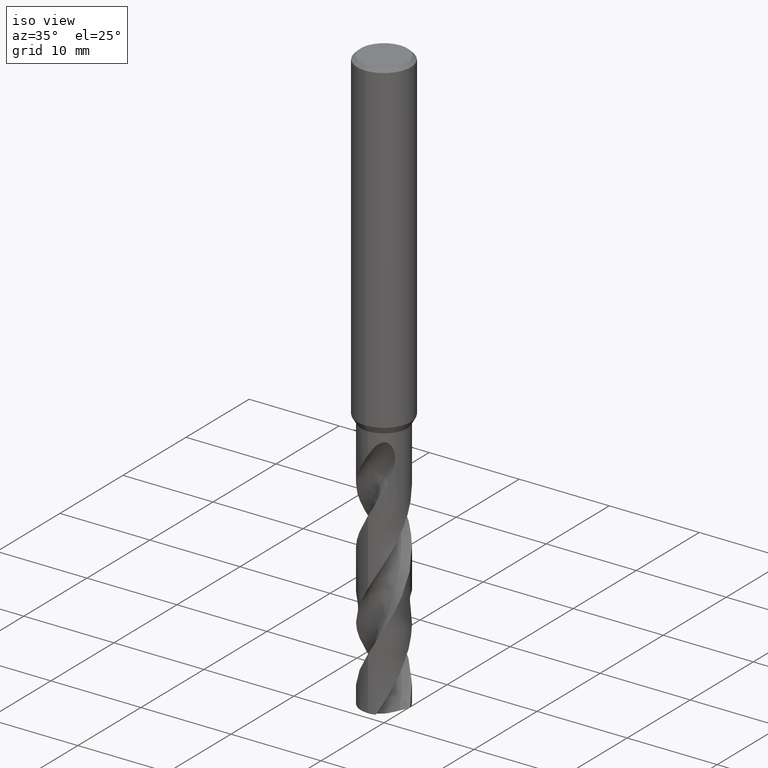
[diagram: clean part render]
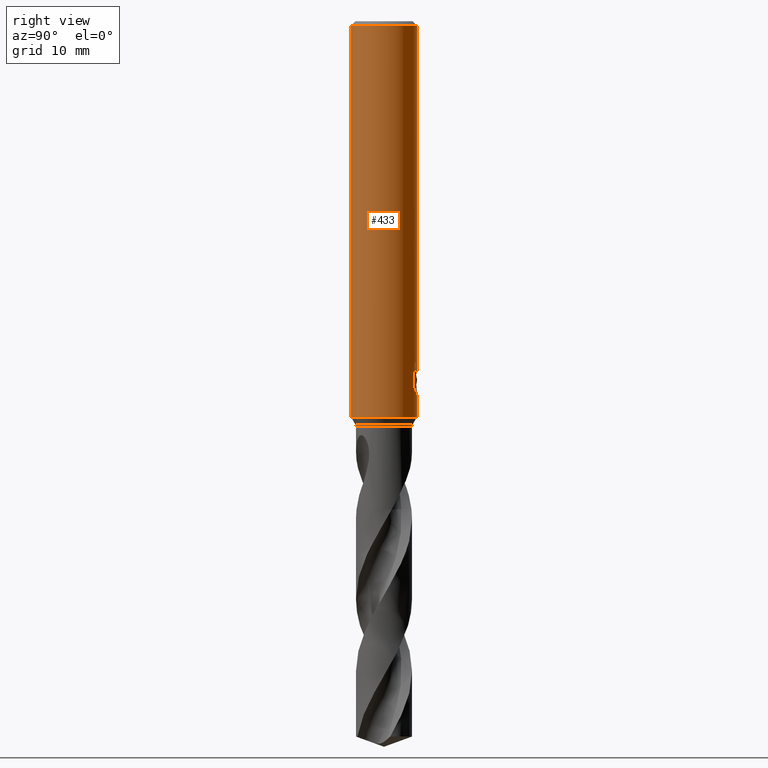
[diagram: tour spotlight — one face highlighted and labeled with its STEP entity id]
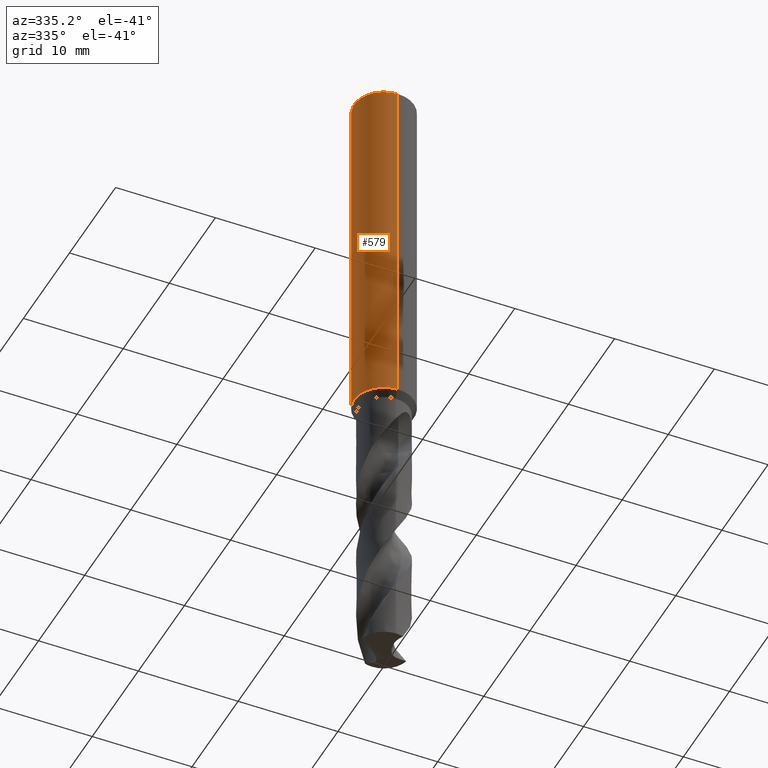
[diagram: tour spotlight — one face highlighted and labeled with its STEP entity id]
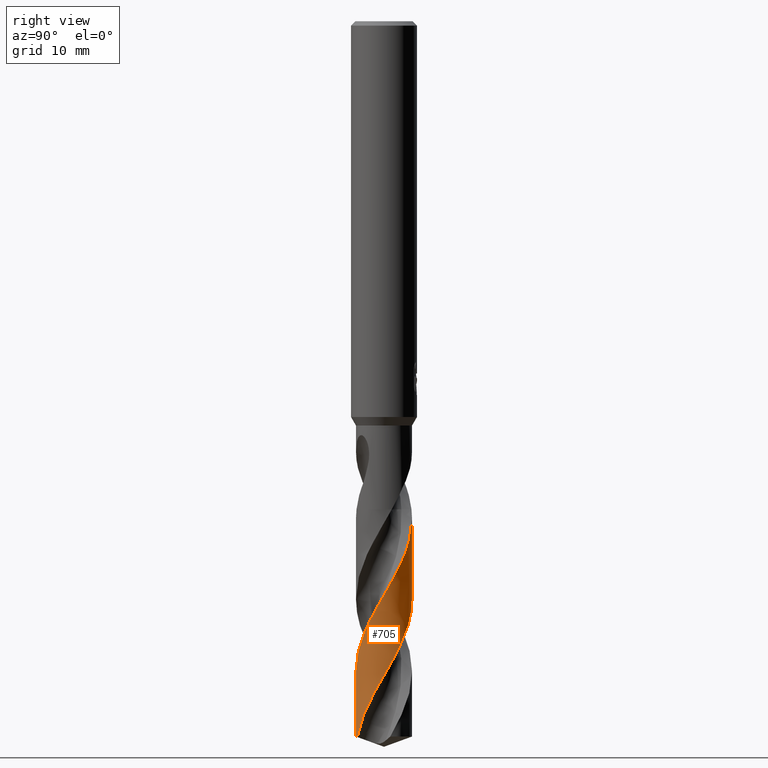
[diagram: tour spotlight — one face highlighted and labeled with its STEP entity id]
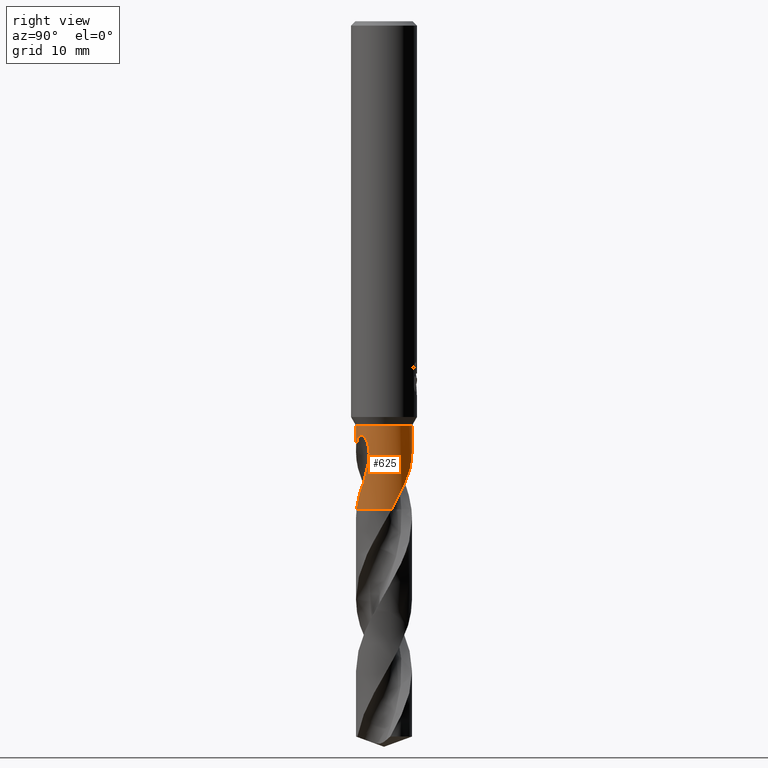
[diagram: tour spotlight — one face highlighted and labeled with its STEP entity id]
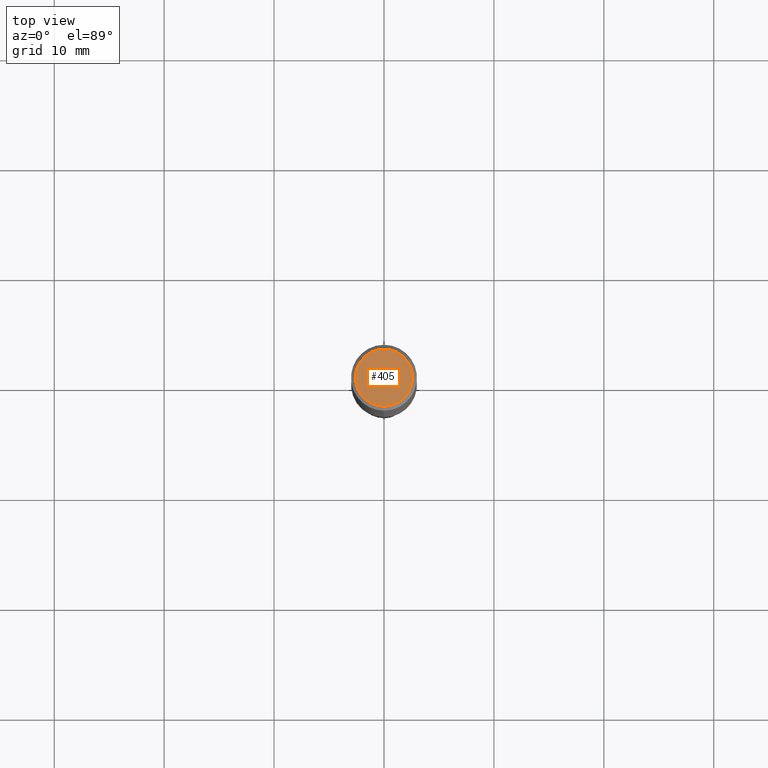
[diagram: tour spotlight — one face highlighted and labeled with its STEP entity id]
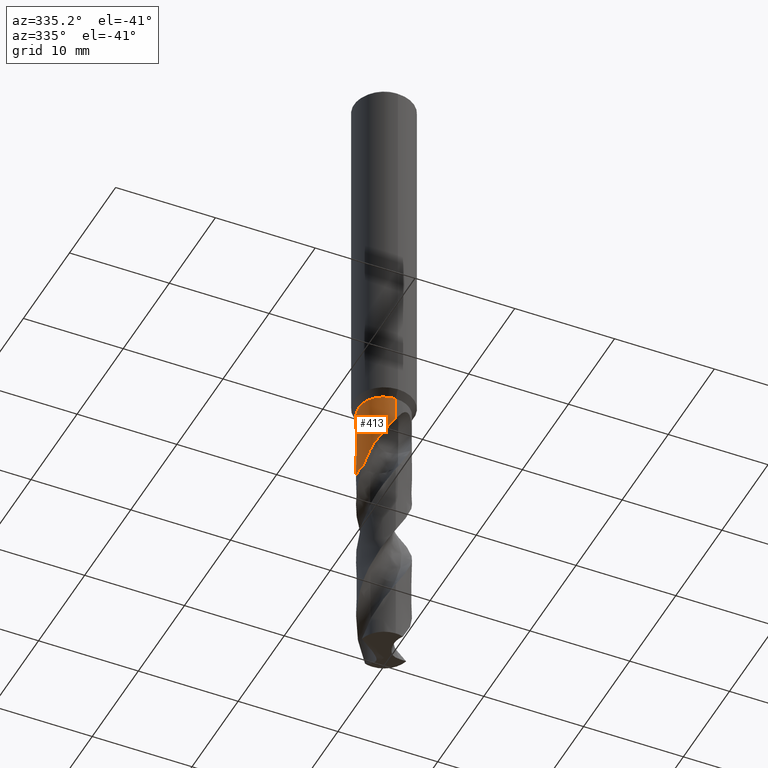
[diagram: tour spotlight — one face highlighted and labeled with its STEP entity id]
A machine part: a face-by-face anatomy tour. The part has 48 B-rep faces; the first image is the clean iso view, then the 6 largest visible faces are spotlighted one at a time (largest first), each with its STEP entity span.

Face 1 — right view, entity #433. In plain terms, the highlighted cylindrical surface (edge-blend (fillet) strip) has radius 3 mm, axis along (-0, -0, 1).
Definition (entity closure, byte-faithful):
#305=EDGE_CURVE('',#415,#685,#829,.T.);
#311=VERTEX_POINT('',#836);
#321=EDGE_CURVE('',#449,#701,#847,.T.);
#329=EDGE_CURVE('',#453,#685,#855,.T.);
#335=EDGE_CURVE('',#383,#369,#861,.T.);
#369=VERTEX_POINT('',#897);
#371=EDGE_CURVE('',#453,#369,#899,.T.);
#383=VERTEX_POINT('',#911);
#415=VERTEX_POINT('',#950);
#433=ADVANCED_FACE('',(#968),#969,.T.);
#449=VERTEX_POINT('',#986);
#453=VERTEX_POINT('',#990);
#461=VERTEX_POINT('',#999);
#477=VERTEX_POINT('',#1016);
#533=VERTEX_POINT('',#1078);
#613=EDGE_CURVE('',#449,#533,#1168,.T.);
#645=EDGE_CURVE('',#477,#461,#1204,.T.);
#677=EDGE_CURVE('',#533,#415,#1240,.T.);
#685=VERTEX_POINT('',#1249);
#687=EDGE_CURVE('',#311,#477,#1251,.T.);
#701=VERTEX_POINT('',#1267);
#709=EDGE_CURVE('',#701,#769,#1276,.T.);
#769=VERTEX_POINT('',#1338);
#773=EDGE_CURVE('',#769,#311,#1342,.T.);
#785=EDGE_CURVE('',#461,#383,#1355,.T.);
#829=LINE('',#1913,#1914);
#836=CARTESIAN_POINT('',(0.873560781758956,2.86999852971612,-33.7587351791531));
#847=B_SPLINE_CURVE_WITH_KNOTS('',3,(#1937,#1938,#1939,#1940,#1941,#1942,#1943,#1944,#1945,#1946,#1947,#1948,#1949,#1950,#1951,#1952),.UNSPECIFIED.,.F.,.F.,(4,2,2,2,2,2,2,4),(5.66023402257373,6.29060333517104,6.60504483258975,6.91948633000846,7.23392782742717,7.54836932484587,7.86141901111221,8.17446869737855),.UNSPECIFIED.);
#855=CIRCLE('',#1981,3.0);
#861=B_SPLINE_CURVE_WITH_KNOTS('',3,(#1988,#1989,#1990,#1991,#1992,#1993,#1994,#1995,#1996,#1997,#1998,#1999,#2000,#2001,#2002,#2003,#2004,#2005,#2006,#2007,#2008,#2009,#2010,#2011,#2012,#2013,#2014),.UNSPECIFIED.,.F.,.F.,(4,2,3,2,2,2,2,2,2,2,2,2,4),(-0.54422824842136,-0.27211412421068,0.0,0.272114124210678,0.544228248421357,0.817906359646673,1.09158447087199,1.36255924571499,1.63353402055798,1.90530456554772,2.17707511053746,2.4488456555272,2.72061620051693),.UNSPECIFIED.);
#897=CARTESIAN_POINT('',(-1.20768269592175E-015,3.0,-32.0232688117743));
#899=LINE('',#2567,#2568);
#911=CARTESIAN_POINT('',(0.799431726384364,2.89152363207533,-31.000000276873));
#950=CARTESIAN_POINT('',(3.67381906146713E-016,-3.0,-36.0));
#968=FACE_OUTER_BOUND('',#3528,.T.);
#969=CYLINDRICAL_SURFACE('',#3529,3.0);
#986=CARTESIAN_POINT('',(-2.46407913303377E-016,3.0,-34.0310253601033));
#990=CARTESIAN_POINT('',(0.0,3.0,-0.399999999999999));
#999=CARTESIAN_POINT('',(1.33721006514658,2.68549236485057,-31.5150484364821));
#1016=CARTESIAN_POINT('',(1.33721006514658,2.68549236485056,-33.2901657003257));
#1078=CARTESIAN_POINT('',(0.0,3.0,-36.0));
#1168=LINE('',#5388,#5389);
#1204=LINE('',#5662,#5663);
#1240=CIRCLE('',#5775,3.0);
#1249=CARTESIAN_POINT('',(3.67381906146713E-016,-3.0,-0.399999999999999));
#1251=B_SPLINE_CURVE_WITH_KNOTS('',3,(#5998,#5999,#6000,#6001,#6002,#6003,#6004,#6005),.UNSPECIFIED.,.F.,.F.,(4,2,2,4),(8.17446522132897,8.48751487521068,8.80056452909238,9.43014514523744),.UNSPECIFIED.);
#1267=CARTESIAN_POINT('',(0.29010312703583,2.98594041730307,-33.9998328990228));
#1276=ELLIPSE('',#6334,9.14398372010932,3.0);
#1338=CARTESIAN_POINT('',(0.873560781758957,2.86999852971612,-32.3198931596091));
#1342=LINE('',#6835,#6836);
#1355=B_SPLINE_CURVE_WITH_KNOTS('',3,(#6857,#6858,#6859,#6860,#6861,#6862,#6863,#6864),.UNSPECIFIED.,.F.,.F.,(4,2,2,4),(0.629580638580865,1.25916127716173,1.57221094126725,1.88526060537277),.UNSPECIFIED.);
#1913=CARTESIAN_POINT('',(3.67381906146713E-016,-3.0,-18.2));
#1914=VECTOR('',#7303,1.0);
#1937=CARTESIAN_POINT('',(-1.53050642192579,2.58022287650581,-33.0319811255889));
#1938=CARTESIAN_POINT('',(-1.44691631248335,2.62980577312329,-33.2314887010961));
#1939=CARTESIAN_POINT('',(-1.32276760444366,2.69707077181617,-33.4113258593841));
#1940=CARTESIAN_POINT('',(-1.10973155101076,2.78826898930335,-33.6245951706909));
#1941=CARTESIAN_POINT('',(-1.02948996220254,2.81934349084513,-33.6916117853674));
#1942=CARTESIAN_POINT('',(-0.853932698223484,2.87738531454781,-33.8105216600777));
#1943=CARTESIAN_POINT('',(-0.758609991487907,2.90431263574779,-33.8624240602539));
#1944=CARTESIAN_POINT('',(-0.558469552260235,2.94934446690523,-33.9464055954533));
#1945=CARTESIAN_POINT('',(-0.453457041446381,2.96746268462387,-33.9785511641911));
#1946=CARTESIAN_POINT('',(-0.240810292537893,2.99223469602914,-34.0209924679526));
#1947=CARTESIAN_POINT('',(-0.133171317626829,2.99887501234033,-34.0312723335086));
#1948=CARTESIAN_POINT('',(0.0759830626177195,3.00085245803086,-34.0312723335086));
#1949=CARTESIAN_POINT('',(0.183273473896684,2.99629272230549,-34.0210815541729));
#1950=CARTESIAN_POINT('',(0.39543915272815,2.97573303917486,-33.9788816901513));
#1951=CARTESIAN_POINT('',(0.500318639064909,2.95974677710468,-33.9468871509919));
#1952=CARTESIAN_POINT('',(0.600330982089903,2.93932011049205,-33.9050368602192));
#1981=AXIS2_PLACEMENT_3D('',#7325,#7326,#7327);
#1988=CARTESIAN_POINT('',(0.665621182276714,2.92522622060321,-30.8140957881762));
#1989=CARTESIAN_POINT('',(0.728850563417096,2.91083867849353,-30.877518087557));
#1990=CARTESIAN_POINT('',(0.783900459387161,2.89602337967411,-30.9578702196133));
#1991=CARTESIAN_POINT('',(0.857188692916628,2.87518328740958,-31.1345580124299));
#1992=CARTESIAN_POINT('',(0.875400981188567,2.86943777108584,-31.2309373045166));
#1993=CARTESIAN_POINT('',(0.875400981188567,2.86943777108584,-31.3216420125868));
#1994=CARTESIAN_POINT('',(0.875400981188567,2.86943777108584,-31.412346720657));
#1995=CARTESIAN_POINT('',(0.857188692916629,2.87518328740958,-31.5087260127437));
#1996=CARTESIAN_POINT('',(0.783900459387161,2.89602337967411,-31.6854138055602));
#1997=CARTESIAN_POINT('',(0.728850563417096,2.91083867849353,-31.7657659376165));
#1998=CARTESIAN_POINT('',(0.60202838769231,2.93969645569731,-31.8929750586276));
#1999=CARTESIAN_POINT('',(0.5214778595293,2.95568533572518,-31.9483797636259));
#2000=CARTESIAN_POINT('',(0.34429909105015,2.98152194310932,-32.0221641076746));
#2001=CARTESIAN_POINT('',(0.247628172090375,2.99115403786358,-32.0405166027747));
#2002=CARTESIAN_POINT('',(0.0663244946631877,3.00062654348629,-32.0405166027747));
#2003=CARTESIAN_POINT('',(-0.0299285908853379,3.00115720326599,-32.0224875186921));
#2004=CARTESIAN_POINT('',(-0.206881310600538,2.99416773126077,-31.949244373347));
#2005=CARTESIAN_POINT('',(-0.287593937381961,2.98687212067831,-31.8940404490632));
#2006=CARTESIAN_POINT('',(-0.415200117492864,2.97182576996222,-31.7666805419979));
#2007=CARTESIAN_POINT('',(-0.470604049431396,2.96309385107775,-31.6859121102136));
#2008=CARTESIAN_POINT('',(-0.544183869965539,2.95046729924835,-31.5086992019516));
#2009=CARTESIAN_POINT('',(-0.562348199187247,2.94682278104247,-31.41223219425));
#2010=CARTESIAN_POINT('',(-0.562348199187247,2.94682278104247,-31.2310518309235));
#2011=CARTESIAN_POINT('',(-0.54418386996554,2.95046729924835,-31.134584823222));
#2012=CARTESIAN_POINT('',(-0.4706040494314,2.96309385107775,-30.95737191496));
#2013=CARTESIAN_POINT('',(-0.415200117492863,2.97182576996222,-30.8766034831756));
#2014=CARTESIAN_POINT('',(-0.351303479704285,2.97935997575782,-30.812830162452));
#2567=CARTESIAN_POINT('',(-3.67381906146713E-016,3.0,-18.2));
#2568=VECTOR('',#7352,1.0);
#3528=EDGE_LOOP('',(#7429,#7430,#7431,#7432,#7433,#7434,#7435,#7436,#7437,#7438,#7439,#7440));
#3529=AXIS2_PLACEMENT_3D('',#7441,#7442,#7443);
#5388=CARTESIAN_POINT('',(-3.67381906146713E-016,3.0,-18.2));
#5389=VECTOR('',#7682,1.0);
#5662=CARTESIAN_POINT('',(1.33721006514658,2.68549236485056,-32.4026070684039));
#5663=VECTOR('',#7727,1.0);
#5775=AXIS2_PLACEMENT_3D('',#7768,#7769,#7770);
#5998=CARTESIAN_POINT('',(0.600330703923335,2.93932016730517,-33.9050364278969));
#5999=CARTESIAN_POINT('',(0.700343038443484,2.91889351228921,-33.8631861412044));
#6000=CARTESIAN_POINT('',(0.795685584213131,2.8940165604303,-33.8114119954011));
#6001=CARTESIAN_POINT('',(0.971352589628262,2.83988055167306,-33.692706383359));
#6002=CARTESIAN_POINT('',(1.0516835476539,2.81066216129401,-33.6257659914415));
#6003=CARTESIAN_POINT('',(1.26543925920527,2.72440179743877,-33.4122346680481));
#6004=CARTESIAN_POINT('',(1.3899740959159,2.66030349847411,-33.2319488826214));
#6005=CARTESIAN_POINT('',(1.47371594109741,2.61307507066968,-33.0321377817991));
#6334=AXIS2_PLACEMENT_3D('',#7801,#7802,#7803);
#6835=CARTESIAN_POINT('',(0.873560781758957,2.86999852971612,-33.0393141693811));
#6836=VECTOR('',#7835,1.0);
#6857=CARTESIAN_POINT('',(1.47371594887933,2.61307506628086,-31.7730763684241));
#6858=CARTESIAN_POINT('',(1.38997410067862,2.66030349611674,-31.5732652606136));
#6859=CARTESIAN_POINT('',(1.2654392594963,2.72440179761724,-31.3929794688919));
#6860=CARTESIAN_POINT('',(1.05168354029617,2.81066216411606,-31.1794481382038));
#6861=CARTESIAN_POINT('',(0.971352579549231,2.83988055521709,-31.1125077441098));
#6862=CARTESIAN_POINT('',(0.795685568183073,2.89401656493242,-30.9938021282019));
#6863=CARTESIAN_POINT('',(0.700343019183212,2.91889351702519,-30.9420279807093));
#6864=CARTESIAN_POINT('',(0.600330681290245,2.93932017192779,-30.9001776926585));
#7303=DIRECTION('',(-0.0,-0.0,1.0));
#7325=CARTESIAN_POINT('',(0.0,0.0,-0.399999999999999));
#7326=DIRECTION('',(0.0,0.0,-1.0));
#7327=DIRECTION('',(0.0,1.0,0.0));
#7352=DIRECTION('',(0.0,0.0,-1.0));
#7429=ORIENTED_EDGE('',*,*,#371,.F.);
#7430=ORIENTED_EDGE('',*,*,#329,.T.);
#7431=ORIENTED_EDGE('',*,*,#305,.F.);
#7432=ORIENTED_EDGE('',*,*,#677,.F.);
#7433=ORIENTED_EDGE('',*,*,#613,.F.);
#7434=ORIENTED_EDGE('',*,*,#321,.T.);
#7435=ORIENTED_EDGE('',*,*,#709,.T.);
#7436=ORIENTED_EDGE('',*,*,#773,.T.);
#7437=ORIENTED_EDGE('',*,*,#687,.T.);
#7438=ORIENTED_EDGE('',*,*,#645,.T.);
#7439=ORIENTED_EDGE('',*,*,#785,.T.);
#7440=ORIENTED_EDGE('',*,*,#335,.T.);
#7441=CARTESIAN_POINT('',(0.0,0.0,-18.2));
#7442=DIRECTION('',(-0.0,-0.0,1.0));
#7443=DIRECTION('',(0.0,1.0,0.0));
#7682=DIRECTION('',(0.0,0.0,-1.0));
#7727=DIRECTION('',(-0.0,-0.0,1.0));
#7768=CARTESIAN_POINT('',(0.0,0.0,-36.0));
#7769=DIRECTION('',(0.0,0.0,-1.0));
#7770=DIRECTION('',(0.0,1.0,0.0));
#7801=CARTESIAN_POINT('',(0.0,0.0,-34.8351219173269));
#7802=DIRECTION('',(0.944648353914092,0.0,-0.328084573619969));
#7803=DIRECTION('',(0.328084573619969,-0.0,0.944648353914092));
#7835=DIRECTION('',(0.0,0.0,-1.0));

Face 2 — auxiliary view, entity #579. In plain terms, the highlighted cylindrical surface (edge-blend (fillet) strip) has radius 3 mm, axis along (-0, -0, 1).
Definition (entity closure, byte-faithful):
#301=VERTEX_POINT('',#825);
#305=EDGE_CURVE('',#415,#685,#829,.T.);
#369=VERTEX_POINT('',#897);
#371=EDGE_CURVE('',#453,#369,#899,.T.);
#377=EDGE_CURVE('',#747,#507,#905,.T.);
#407=EDGE_CURVE('',#421,#695,#941,.T.);
#411=EDGE_CURVE('',#507,#449,#945,.T.);
#415=VERTEX_POINT('',#950);
#421=VERTEX_POINT('',#956);
#449=VERTEX_POINT('',#986);
#453=VERTEX_POINT('',#990);
#499=EDGE_CURVE('',#603,#301,#1040,.T.);
#507=VERTEX_POINT('',#1049);
#517=EDGE_CURVE('',#685,#453,#1060,.T.);
#529=EDGE_CURVE('',#301,#747,#1073,.T.);
#533=VERTEX_POINT('',#1078);
#557=EDGE_CURVE('',#695,#603,#1104,.T.);
#579=ADVANCED_FACE('',(#1130),#1131,.T.);
#603=VERTEX_POINT('',#1157);
#613=EDGE_CURVE('',#449,#533,#1168,.T.);
#653=EDGE_CURVE('',#369,#421,#1214,.T.);
#685=VERTEX_POINT('',#1249);
#695=VERTEX_POINT('',#1260);
#747=VERTEX_POINT('',#1315);
#765=EDGE_CURVE('',#415,#533,#1333,.T.);
#825=CARTESIAN_POINT('',(-2.06254272401587E-016,3.0,-32.5000801551881));
#829=LINE('',#1913,#1914);
#897=CARTESIAN_POINT('',(-1.20768269592175E-015,3.0,-32.0232688117743));
#899=LINE('',#2567,#2568);
#905=ELLIPSE('',#2576,3.34478529612858,3.0);
#941=B_SPLINE_CURVE_WITH_KNOTS('',3,(#3355,#3356,#3357,#3358,#3359,#3360,#3361,#3362,#3363,#3364,#3365,#3366,#3367,#3368,#3369,#3370,#3371,#3372,#3373,#3374,#3375,#3376,#3377,#3378,#3379,#3380,#3381),.UNSPECIFIED.,.F.,.F.,(4,2,3,2,2,2,2,2,2,2,2,2,4),(-0.54422824842136,-0.27211412421068,0.0,0.272114124210678,0.544228248421357,0.817906359646673,1.09158447087199,1.36255924571499,1.63353402055798,1.90530456554772,2.17707511053746,2.4488456555272,2.72061620051693),.UNSPECIFIED.);
#945=B_SPLINE_CURVE_WITH_KNOTS('',3,(#3425,#3426,#3427,#3428,#3429,#3430,#3431,#3432,#3433,#3434,#3435,#3436,#3437,#3438,#3439,#3440),.UNSPECIFIED.,.F.,.F.,(4,2,2,2,2,2,2,4),(5.66023402257373,6.29060333517104,6.60504483258975,6.91948633000846,7.23392782742717,7.54836932484587,7.86141901111221,8.17446869737855),.UNSPECIFIED.);
#950=CARTESIAN_POINT('',(3.67381906146713E-016,-3.0,-36.0));
#956=CARTESIAN_POINT('',(-0.486378944383045,2.96031003823262,-31.6432837483006));
#986=CARTESIAN_POINT('',(-2.46407913303377E-016,3.0,-34.0310253601033));
#990=CARTESIAN_POINT('',(0.0,3.0,-0.399999999999999));
#1040=B_SPLINE_CURVE_WITH_KNOTS('',3,(#4132,#4133,#4134,#4135,#4136,#4137,#4138,#4139,#4140,#4141,#4142,#4143,#4144,#4145),.UNSPECIFIED.,.F.,.F.,(4,2,2,2,2,2,4),(3.16026050654945,3.61086409539206,4.06146768423468,4.51207127307729,4.95991823802074,5.40776520296419,5.86282890530594),.UNSPECIFIED.);
#1049=CARTESIAN_POINT('',(-1.337052752443,2.68557069115386,-33.3720803908795));
#1060=CIRCLE('',#4168,3.0);
#1073=LINE('',#4207,#4208);
#1078=CARTESIAN_POINT('',(0.0,3.0,-36.0));
#1104=CIRCLE('',#4272,3.0);
#1130=FACE_OUTER_BOUND('',#4330,.T.);
#1131=CYLINDRICAL_SURFACE('',#4331,3.0);
#1157=CARTESIAN_POINT('',(-1.0350734039088,2.81578107254819,-31.3171221986971));
#1168=LINE('',#5388,#5389);
#1214=B_SPLINE_CURVE_WITH_KNOTS('',3,(#5675,#5676,#5677,#5678,#5679,#5680,#5681,#5682,#5683,#5684,#5685,#5686,#5687,#5688,#5689,#5690,#5691,#5692,#5693,#5694,#5695,#5696,#5697,#5698,#5699,#5700,#5701),.UNSPECIFIED.,.F.,.F.,(4,2,3,2,2,2,2,2,2,2,2,2,4),(-0.54422824842136,-0.27211412421068,0.0,0.272114124210678,0.544228248421357,0.817906359646673,1.09158447087199,1.36255924571499,1.63353402055798,1.90530456554772,2.17707511053746,2.4488456555272,2.72061620051693),.UNSPECIFIED.);
#1249=CARTESIAN_POINT('',(3.67381906146713E-016,-3.0,-0.399999999999999));
#1260=CARTESIAN_POINT('',(-0.562333990228013,2.94682549253162,-31.3171221986971));
#1315=CARTESIAN_POINT('',(-3.67366600472444E-016,3.0,-32.7128911336578));
#1333=CIRCLE('',#6821,3.0);
#1913=CARTESIAN_POINT('',(3.67381906146713E-016,-3.0,-18.2));
#1914=VECTOR('',#7303,1.0);
#2567=CARTESIAN_POINT('',(-3.67381906146713E-016,3.0,-18.2));
#2568=VECTOR('',#7352,1.0);
#2576=AXIS2_PLACEMENT_3D('',#7356,#7357,#7358);
#3355=CARTESIAN_POINT('',(0.665621182276714,2.92522622060321,-30.8140957881762));
#3356=CARTESIAN_POINT('',(0.728850563417096,2.91083867849353,-30.877518087557));
#3357=CARTESIAN_POINT('',(0.783900459387161,2.89602337967411,-30.9578702196133));
#3358=CARTESIAN_POINT('',(0.857188692916628,2.87518328740958,-31.1345580124299));
#3359=CARTESIAN_POINT('',(0.875400981188567,2.86943777108584,-31.2309373045166));
#3360=CARTESIAN_POINT('',(0.875400981188567,2.86943777108584,-31.3216420125868));
#3361=CARTESIAN_POINT('',(0.875400981188567,2.86943777108584,-31.412346720657));
#3362=CARTESIAN_POINT('',(0.857188692916629,2.87518328740958,-31.5087260127437));
#3363=CARTESIAN_POINT('',(0.783900459387161,2.89602337967411,-31.6854138055602));
#3364=CARTESIAN_POINT('',(0.728850563417096,2.91083867849353,-31.7657659376165));
#3365=CARTESIAN_POINT('',(0.60202838769231,2.93969645569731,-31.8929750586276));
#3366=CARTESIAN_POINT('',(0.5214778595293,2.95568533572518,-31.9483797636259));
#3367=CARTESIAN_POINT('',(0.34429909105015,2.98152194310932,-32.0221641076746));
#3368=CARTESIAN_POINT('',(0.247628172090375,2.99115403786358,-32.0405166027747));
#3369=CARTESIAN_POINT('',(0.0663244946631877,3.00062654348629,-32.0405166027747));
#3370=CARTESIAN_POINT('',(-0.0299285908853379,3.00115720326599,-32.0224875186921));
#3371=CARTESIAN_POINT('',(-0.206881310600538,2.99416773126077,-31.949244373347));
#3372=CARTESIAN_POINT('',(-0.287593937381961,2.98687212067831,-31.8940404490632));
#3373=CARTESIAN_POINT('',(-0.415200117492864,2.97182576996222,-31.7666805419979));
#3374=CARTESIAN_POINT('',(-0.470604049431396,2.96309385107775,-31.6859121102136));
#3375=CARTESIAN_POINT('',(-0.544183869965539,2.95046729924835,-31.5086992019516));
#3376=CARTESIAN_POINT('',(-0.562348199187247,2.94682278104247,-31.41223219425));
#3377=CARTESIAN_POINT('',(-0.562348199187247,2.94682278104247,-31.2310518309235));
#3378=CARTESIAN_POINT('',(-0.54418386996554,2.95046729924835,-31.134584823222));
#3379=CARTESIAN_POINT('',(-0.4706040494314,2.96309385107775,-30.95737191496));
#3380=CARTESIAN_POINT('',(-0.415200117492863,2.97182576996222,-30.8766034831756));
#3381=CARTESIAN_POINT('',(-0.351303479704285,2.97935997575782,-30.812830162452));
#3425=CARTESIAN_POINT('',(-1.53050642192579,2.58022287650581,-33.0319811255889));
#3426=CARTESIAN_POINT('',(-1.44691631248335,2.62980577312329,-33.2314887010961));
#3427=CARTESIAN_POINT('',(-1.32276760444366,2.69707077181617,-33.4113258593841));
#3428=CARTESIAN_POINT('',(-1.10973155101076,2.78826898930335,-33.6245951706909));
#3429=CARTESIAN_POINT('',(-1.02948996220254,2.81934349084513,-33.6916117853674));
#3430=CARTESIAN_POINT('',(-0.853932698223484,2.87738531454781,-33.8105216600777));
#3431=CARTESIAN_POINT('',(-0.758609991487907,2.90431263574779,-33.8624240602539));
#3432=CARTESIAN_POINT('',(-0.558469552260235,2.94934446690523,-33.9464055954533));
#3433=CARTESIAN_POINT('',(-0.453457041446381,2.96746268462387,-33.9785511641911));
#3434=CARTESIAN_POINT('',(-0.240810292537893,2.99223469602914,-34.0209924679526));
#3435=CARTESIAN_POINT('',(-0.133171317626829,2.99887501234033,-34.0312723335086));
#3436=CARTESIAN_POINT('',(0.0759830626177195,3.00085245803086,-34.0312723335086));
#3437=CARTESIAN_POINT('',(0.183273473896684,2.99629272230549,-34.0210815541729));
#3438=CARTESIAN_POINT('',(0.39543915272815,2.97573303917486,-33.9788816901513));
#3439=CARTESIAN_POINT('',(0.500318639064909,2.95974677710468,-33.9468871509919));
#3440=CARTESIAN_POINT('',(0.600330982089903,2.93932011049205,-33.9050368602192));
#4132=CARTESIAN_POINT('',(-0.944028754947609,2.84759718180646,-30.87109591768));
#4133=CARTESIAN_POINT('',(-1.00479265183033,2.82745289805341,-31.0168616503562));
#4134=CARTESIAN_POINT('',(-1.03510901790186,2.81576798068631,-31.1761006644519));
#4135=CARTESIAN_POINT('',(-1.03510901790186,2.81576798068631,-31.4765030570137));
#4136=CARTESIAN_POINT('',(-1.00479265183033,2.82745289805341,-31.6357420711094));
#4137=CARTESIAN_POINT('',(-0.88326485806506,2.86774146555976,-31.9272735364618));
#4138=CARTESIAN_POINT('',(-0.792109261194285,2.89554580131596,-32.0596991578702));
#4139=CARTESIAN_POINT('',(-0.582867737485067,2.94478284423827,-32.2682275153448));
#4140=CARTESIAN_POINT('',(-0.450640829386874,2.96956027684007,-32.358826497016));
#4141=CARTESIAN_POINT('',(-0.159819744133953,2.99930375982357,-32.4794282329782));
#4142=CARTESIAN_POINT('',(-0.00114290335869099,3.00371168811663,-32.5093686300866));
#4143=CARTESIAN_POINT('',(0.299461057962613,2.98886806232847,-32.5093686300866));
#4144=CARTESIAN_POINT('',(0.459264276215476,2.96836791045541,-32.4785566268234));
#4145=CARTESIAN_POINT('',(0.604975334200916,2.93836771779988,-32.4175314011172));
#4168=AXIS2_PLACEMENT_3D('',#7522,#7523,#7524);
#4207=CARTESIAN_POINT('',(-3.67381906146713E-016,3.0,-18.2));
#4208=VECTOR('',#7535,1.0);
#4272=AXIS2_PLACEMENT_3D('',#7583,#7584,#7585);
#4330=EDGE_LOOP('',(#7642,#7643,#7644,#7645,#7646,#7647,#7648,#7649,#7650,#7651,#7652,#7653));
#4331=AXIS2_PLACEMENT_3D('',#7654,#7655,#7656);
#5388=CARTESIAN_POINT('',(-3.67381906146713E-016,3.0,-18.2));
#5389=VECTOR('',#7682,1.0);
#5675=CARTESIAN_POINT('',(0.665621182276714,2.92522622060321,-30.8140957881762));
#5676=CARTESIAN_POINT('',(0.728850563417096,2.91083867849353,-30.877518087557));
#5677=CARTESIAN_POINT('',(0.783900459387161,2.89602337967411,-30.9578702196133));
#5678=CARTESIAN_POINT('',(0.857188692916628,2.87518328740958,-31.1345580124299));
#5679=CARTESIAN_POINT('',(0.875400981188567,2.86943777108584,-31.2309373045166));
#5680=CARTESIAN_POINT('',(0.875400981188567,2.86943777108584,-31.3216420125868));
#5681=CARTESIAN_POINT('',(0.875400981188567,2.86943777108584,-31.412346720657));
#5682=CARTESIAN_POINT('',(0.857188692916629,2.87518328740958,-31.5087260127437));
#5683=CARTESIAN_POINT('',(0.783900459387161,2.89602337967411,-31.6854138055602));
#5684=CARTESIAN_POINT('',(0.728850563417096,2.91083867849353,-31.7657659376165));
#5685=CARTESIAN_POINT('',(0.60202838769231,2.93969645569731,-31.8929750586276));
#5686=CARTESIAN_POINT('',(0.5214778595293,2.95568533572518,-31.9483797636259));
#5687=CARTESIAN_POINT('',(0.34429909105015,2.98152194310932,-32.0221641076746));
#5688=CARTESIAN_POINT('',(0.247628172090375,2.99115403786358,-32.0405166027747));
#5689=CARTESIAN_POINT('',(0.0663244946631877,3.00062654348629,-32.0405166027747));
#5690=CARTESIAN_POINT('',(-0.0299285908853379,3.00115720326599,-32.0224875186921));
#5691=CARTESIAN_POINT('',(-0.206881310600538,2.99416773126077,-31.949244373347));
#5692=CARTESIAN_POINT('',(-0.287593937381961,2.98687212067831,-31.8940404490632));
#5693=CARTESIAN_POINT('',(-0.415200117492864,2.97182576996222,-31.7666805419979));
#5694=CARTESIAN_POINT('',(-0.470604049431396,2.96309385107775,-31.6859121102136));
#5695=CARTESIAN_POINT('',(-0.544183869965539,2.95046729924835,-31.5086992019516));
#5696=CARTESIAN_POINT('',(-0.562348199187247,2.94682278104247,-31.41223219425));
#5697=CARTESIAN_POINT('',(-0.562348199187247,2.94682278104247,-31.2310518309235));
#5698=CARTESIAN_POINT('',(-0.54418386996554,2.95046729924835,-31.134584823222));
#5699=CARTESIAN_POINT('',(-0.4706040494314,2.96309385107775,-30.95737191496));
#5700=CARTESIAN_POINT('',(-0.415200117492863,2.97182576996222,-30.8766034831756));
#5701=CARTESIAN_POINT('',(-0.351303479704285,2.97935997575782,-30.812830162452));
#6821=AXIS2_PLACEMENT_3D('',#7822,#7823,#7824);
#7303=DIRECTION('',(-0.0,-0.0,1.0));
#7352=DIRECTION('',(0.0,0.0,-1.0));
#7356=CARTESIAN_POINT('',(0.0,0.0,-32.7128911336578));
#7357=DIRECTION('',(-0.442195774284071,0.0,0.896918556617774));
#7358=DIRECTION('',(0.896918556617774,-0.0,0.442195774284071));
#7522=CARTESIAN_POINT('',(0.0,0.0,-0.399999999999999));
#7523=DIRECTION('',(0.0,0.0,-1.0));
#7524=DIRECTION('',(0.0,1.0,0.0));
#7535=DIRECTION('',(0.0,0.0,-1.0));
#7583=CARTESIAN_POINT('',(0.0,0.0,-31.3171221986971));
#7584=DIRECTION('',(0.0,-0.0,1.0));
#7585=DIRECTION('',(0.0,1.0,0.0));
#7642=ORIENTED_EDGE('',*,*,#371,.T.);
#7643=ORIENTED_EDGE('',*,*,#653,.T.);
#7644=ORIENTED_EDGE('',*,*,#407,.T.);
#7645=ORIENTED_EDGE('',*,*,#557,.T.);
#7646=ORIENTED_EDGE('',*,*,#499,.T.);
#7647=ORIENTED_EDGE('',*,*,#529,.T.);
#7648=ORIENTED_EDGE('',*,*,#377,.T.);
#7649=ORIENTED_EDGE('',*,*,#411,.T.);
#7650=ORIENTED_EDGE('',*,*,#613,.T.);
#7651=ORIENTED_EDGE('',*,*,#765,.F.);
#7652=ORIENTED_EDGE('',*,*,#305,.T.);
#7653=ORIENTED_EDGE('',*,*,#517,.T.);
#7654=CARTESIAN_POINT('',(0.0,0.0,-18.2));
#7655=DIRECTION('',(-0.0,-0.0,1.0));
#7656=DIRECTION('',(0.0,1.0,0.0));
#7682=DIRECTION('',(0.0,0.0,-1.0));
#7822=CARTESIAN_POINT('',(0.0,0.0,-36.0));
#7823=DIRECTION('',(0.0,0.0,-1.0));
#7824=DIRECTION('',(0.0,1.0,0.0));

Face 3 — right view, entity #705. In plain terms, the highlighted conical surface has half-angle 0 deg.
Definition (entity closure, byte-faithful):
#331=VERTEX_POINT('',#857);
#359=EDGE_CURVE('',#511,#427,#886,.T.);
#381=EDGE_CURVE('',#737,#509,#909,.T.);
#427=VERTEX_POINT('',#962);
#509=VERTEX_POINT('',#1051);
#511=VERTEX_POINT('',#1053);
#515=EDGE_CURVE('',#737,#331,#1058,.T.);
#551=EDGE_CURVE('',#511,#509,#1098,.T.);
#657=EDGE_CURVE('',#331,#427,#1219,.T.);
#705=ADVANCED_FACE('',(#1271),#1272,.T.);
#737=VERTEX_POINT('',#1304);
#857=CARTESIAN_POINT('',(3.12274620224706E-016,-2.55,-65.0718759026212));
#886=B_SPLINE_CURVE_WITH_KNOTS('',3,(#2046,#2047,#2048,#2049,#2050,#2051,#2052,#2053,#2054,#2055,#2056,#2057,#2058,#2059,#2060,#2061,#2062,#2063,#2064,#2065,#2066,#2067,#2068,#2069,#2070,#2071,#2072,#2073,#2074,#2075,#2076,#2077,#2078,#2079,#2080,#2081,#2082,#2083,#2084,#2085,#2086,#2087,#2088,#2089,#2090,#2091,#2092,#2093,#2094,#2095,#2096,#2097,#2098,#2099,#2100,#2101,#2102,#2103),.UNSPECIFIED.,.F.,.F.,(4,2,2,2,2,2,2,2,2,2,2,2,2,2,2,2,2,2,2,2,2,2,2,2,2,2,2,2,4),(0.0,0.904595376409734,1.93838786459377,2.92163758824237,3.91194730940029,4.15071126324412,5.0106353044713,5.50711745147644,5.996456555101,6.97608884258479,7.96485159304592,8.95029012252816,9.44091576198877,10.4734855307966,11.4615583465464,12.447010891369,12.9372804684334,13.9071458155086,14.8969134462882,15.8810176152042,16.8602019877819,17.7334736815047,18.1138178261376,19.5373381391519,20.0747924207916,21.0211814780108,21.7329142797116,22.7997396179062,23.8685175773681),.UNSPECIFIED.);
#909=B_SPLINE_CURVE_WITH_KNOTS('',3,(#2581,#2582,#2583,#2584,#2585,#2586,#2587,#2588,#2589,#2590,#2591,#2592,#2593,#2594,#2595,#2596,#2597,#2598,#2599,#2600,#2601,#2602,#2603,#2604,#2605,#2606,#2607,#2608,#2609,#2610,#2611,#2612,#2613,#2614,#2615,#2616,#2617,#2618,#2619,#2620,#2621,#2622,#2623,#2624,#2625,#2626,#2627,#2628,#2629,#2630,#2631,#2632,#2633,#2634,#2635,#2636,#2637,#2638,#2639,#2640,#2641,#2642),.UNSPECIFIED.,.F.,.F.,(4,2,2,2,2,2,2,2,2,2,2,2,2,2,2,2,2,2,2,2,2,2,2,2,2,2,2,2,2,2,4),(0.0,0.973739436127836,2.32965119518938,2.54896821320102,4.15997326721761,4.19445712639335,5.87819121262056,5.97879634722335,7.05052223187904,7.43641080196372,7.83598952684722,9.37010563366563,9.58068647943678,11.09902579308,11.3326802364308,12.846458184252,13.0944793267504,14.6189399113665,14.8515527838146,16.3470004208488,16.5954426426628,17.4224008078032,17.8381561960623,18.6145384535525,19.9793050859473,20.043079232453,21.0521618834251,21.4307487667855,22.0919819568146,23.0869670029948,24.077534446617),.UNSPECIFIED.);
#962=CARTESIAN_POINT('',(-1.62016764018776E-015,-2.54997127921081,-59.1347500021574));
#1051=CARTESIAN_POINT('',(-5.48515047849248E-015,2.54993953751047,-52.5731450981478));
#1053=CARTESIAN_POINT('',(-8.14968357207502E-015,2.54990417075244,-45.2621727685655));
#1058=CIRCLE('',#4165,2.55);
#1098=LINE('',#4260,#4261);
#1219=LINE('',#5707,#5708);
#1271=FACE_OUTER_BOUND('',#6324,.T.);
#1272=CONICAL_SURFACE('',#6325,2.54995,4.83749034052352E-006);
#1304=CARTESIAN_POINT('',(0.781501621102599,-2.42729380508706,-65.0718759026212));
#2046=CARTESIAN_POINT('',(-0.492301017395344,2.50192522350578,-44.4042862558919));
#2047=CARTESIAN_POINT('',(-0.344178322945891,2.53107244669452,-44.6653064245351));
#2048=CARTESIAN_POINT('',(-0.193929190382038,2.54697575884056,-44.9258241065054));
#2049=CARTESIAN_POINT('',(0.128809494830351,2.55246164496695,-45.4855873433931));
#2050=CARTESIAN_POINT('',(0.300927942916833,2.53795103824694,-45.7835310996424));
#2051=CARTESIAN_POINT('',(0.631566782055325,2.47589478541863,-46.3657358487347));
#2052=CARTESIAN_POINT('',(0.789402950107921,2.43017478561917,-46.6487402689001));
#2053=CARTESIAN_POINT('',(1.09511162156632,2.30868755434239,-47.2185507735106));
#2054=CARTESIAN_POINT('',(1.24227180952646,2.23295870219164,-47.5037021800001));
#2055=CARTESIAN_POINT('',(1.41458084217042,2.12193826038591,-47.858491615802));
#2056=CARTESIAN_POINT('',(1.4475352444559,2.09959594192681,-47.9273872513592));
#2057=CARTESIAN_POINT('',(1.59669145569391,1.99329189326123,-48.2446156104271));
#2058=CARTESIAN_POINT('',(1.70621966099023,1.90038429845252,-48.4927746077231));
#2059=CARTESIAN_POINT('',(1.86574891082975,1.74009581742481,-48.8844404282418));
#2060=CARTESIAN_POINT('',(1.92126584507662,1.67860100499183,-49.0276801991696));
#2061=CARTESIAN_POINT('',(2.02539156893786,1.55131035983013,-49.3122825734574));
#2062=CARTESIAN_POINT('',(2.07399443604422,1.48570442546733,-49.4533816935031));
#2063=CARTESIAN_POINT('',(2.2101793165145,1.28214975517026,-49.877593336657));
#2064=CARTESIAN_POINT('',(2.28777049318113,1.13795339799935,-50.1601237662392));
#2065=CARTESIAN_POINT('',(2.41489551526079,0.83523975907893,-50.7285202072127));
#2066=CARTESIAN_POINT('',(2.46382894688696,0.67739575498896,-51.0130907412587));
#2067=CARTESIAN_POINT('',(2.53042245163434,0.35512254535974,-51.583306713123));
#2068=CARTESIAN_POINT('',(2.54805651396703,0.19134709266067,-51.867309977371));
#2069=CARTESIAN_POINT('',(2.55066076771163,-0.0549086122669067,-52.2935231624361));
#2070=CARTESIAN_POINT('',(2.54758460176799,-0.136729117313688,-52.4350098139327));
#2071=CARTESIAN_POINT('',(2.5258466679698,-0.389804169407478,-52.8749414599381));
#2072=CARTESIAN_POINT('',(2.49376578970697,-0.559476488858803,-53.1727591692876));
#2073=CARTESIAN_POINT('',(2.39796984515299,-0.882685822676814,-53.7563394092064));
#2074=CARTESIAN_POINT('',(2.33592839386348,-1.03576208291366,-54.0407681815669));
#2075=CARTESIAN_POINT('',(2.18344771290727,-1.32732474063662,-54.610888969515));
#2076=CARTESIAN_POINT('',(2.09338115001778,-1.46528014419916,-54.8949392200762));
#2077=CARTESIAN_POINT('',(1.93947981665815,-1.65751942325476,-55.3211283433562));
#2078=CARTESIAN_POINT('',(1.88532356352634,-1.71886712443186,-55.4625400066255));
#2079=CARTESIAN_POINT('',(1.71556941253617,-1.89347844835062,-55.8843383929728));
#2080=CARTESIAN_POINT('',(1.59200499316282,-1.99849605374424,-56.164185881134));
#2081=CARTESIAN_POINT('',(1.3238787860521,-2.18561456830833,-56.7302550031949));
#2082=CARTESIAN_POINT('',(1.1796360337102,-2.26671592474935,-57.0151565529123));
#2083=CARTESIAN_POINT('',(0.878452190917358,-2.39949311708696,-57.585470579888));
#2084=CARTESIAN_POINT('',(0.722185425316788,-2.45107062291155,-57.8692262725048));
#2085=CARTESIAN_POINT('',(0.402572091848025,-2.52328746598458,-58.4363317221513));
#2086=CARTESIAN_POINT('',(0.240135043374938,-2.54388330470384,-58.7185416064399));
#2087=CARTESIAN_POINT('',(-0.0686434853795442,-2.55320429856017,-59.2537894917376));
#2088=CARTESIAN_POINT('',(-0.214377174392004,-2.54512273046249,-59.5055917840789));
#2089=CARTESIAN_POINT('',(-0.421534610130549,-2.51569278044948,-59.8677009006145));
#2090=CARTESIAN_POINT('',(-0.484012710661114,-2.50442259624439,-59.9774673000797));
#2091=CARTESIAN_POINT('',(-0.777982362679796,-2.43998646384887,-60.4986336434843));
#2092=CARTESIAN_POINT('',(-1.00183297157756,-2.35694838814648,-60.9084320013612));
#2093=CARTESIAN_POINT('',(-1.28993890927062,-2.20148121870971,-61.4749446308585));
#2094=CARTESIAN_POINT('',(-1.36655725330742,-2.15475569089569,-61.6300776655338));
#2095=CARTESIAN_POINT('',(-1.57077515766016,-2.01494596840058,-62.0589126378159));
#2096=CARTESIAN_POINT('',(-1.6925109262753,-1.91384153161916,-62.3319952397731));
#2097=CARTESIAN_POINT('',(-1.88809131083338,-1.71804155917468,-62.8111096431838));
#2098=CARTESIAN_POINT('',(-1.96605529022698,-1.62824461192557,-63.0163696959398));
#2099=CARTESIAN_POINT('',(-2.14451497101899,-1.39111715500031,-63.5303372864517));
#2100=CARTESIAN_POINT('',(-2.23641709927531,-1.23800223531189,-63.8378221863508));
#2101=CARTESIAN_POINT('',(-2.38698107871075,-0.914693297128274,-64.4548072615058));
#2102=CARTESIAN_POINT('',(-2.445036180673,-0.745639627737795,-64.7628269882436));
#2103=CARTESIAN_POINT('',(-2.48497970854249,-0.572167674840248,-65.0718759026212));
#2581=CARTESIAN_POINT('',(0.781501621102603,-2.42729380508706,-65.0718759026212));
#2582=CARTESIAN_POINT('',(0.936654392322793,-2.3773387463327,-64.7911907336629));
#2583=CARTESIAN_POINT('',(1.08586653744853,-2.31286871900473,-64.5083894878095));
#2584=CARTESIAN_POINT('',(1.42391276664532,-2.12728008173716,-63.8378065488846));
#2585=CARTESIAN_POINT('',(1.60559432618969,-1.99374198379501,-63.4529806795277));
#2586=CARTESIAN_POINT('',(1.79373256360754,-1.8128135786547,-63.0000320620304));
#2587=CARTESIAN_POINT('',(1.81936453169177,-1.7870878503702,-62.9369175253481));
#2588=CARTESIAN_POINT('',(2.02896410577869,-1.56752095689746,-62.4103172371844));
#2589=CARTESIAN_POINT('',(2.18167503255085,-1.34675639470443,-61.9548301554897));
#2590=CARTESIAN_POINT('',(2.29981489167362,-1.10149690353406,-61.4813319198318));
#2591=CARTESIAN_POINT('',(2.30227058396431,-1.09635485363102,-61.4714174610817));
#2592=CARTESIAN_POINT('',(2.42407273754086,-0.839089902981069,-60.9763627720417));
#2593=CARTESIAN_POINT('',(2.50122522569896,-0.569237315876879,-60.5008260810699));
#2594=CARTESIAN_POINT('',(2.53508815979425,-0.275645132076071,-59.9872357369814));
#2595=CARTESIAN_POINT('',(2.53683231430039,-0.259100044384307,-59.9582911934222));
#2596=CARTESIAN_POINT('',(2.55528237098295,-0.0659746453769235,-59.6210638042064));
#2597=CARTESIAN_POINT('',(2.55371913673103,0.112170922507938,-59.3152669306704));
#2598=CARTESIAN_POINT('',(2.52626241445098,0.35278373731,-58.8967070281293));
#2599=CARTESIAN_POINT('',(2.51660157207608,0.41611801870754,-58.7859803515778));
#2600=CARTESIAN_POINT('',(2.49214181632538,0.544019140548643,-58.5602670956946));
#2601=CARTESIAN_POINT('',(2.47718934060871,0.608469475602214,-58.4451812391754));
#2602=CARTESIAN_POINT('',(2.39289682659295,0.916907266206064,-57.8900442163269));
#2603=CARTESIAN_POINT('',(2.2899444292485,1.15008178218801,-57.4567733730727));
#2604=CARTESIAN_POINT('',(2.13575751794729,1.39357441301278,-56.9560842845463));
#2605=CARTESIAN_POINT('',(2.11656399660145,1.42255727532211,-56.8956015111814));
#2606=CARTESIAN_POINT('',(1.95375463152658,1.65778330530721,-56.3988520743227));
#2607=CARTESIAN_POINT('',(1.78111890382981,1.84199215194843,-55.9695565195785));
#2608=CARTESIAN_POINT('',(1.55410510959151,2.02200724983044,-55.4664489580129));
#2609=CARTESIAN_POINT('',(1.52332984772112,2.04529237806743,-55.3992930349619));
#2610=CARTESIAN_POINT('',(1.28895527102206,2.21439051708825,-54.897404887428));
#2611=CARTESIAN_POINT('',(1.0655531196271,2.33012132861617,-54.4695135236699));
#2612=CARTESIAN_POINT('',(0.790105702992709,2.42479694101052,-53.963802999333));
#2613=CARTESIAN_POINT('',(0.751070157657841,2.43717013170732,-53.8925395966559));
#2614=CARTESIAN_POINT('',(0.469754300601046,2.51893399000189,-53.383784336762));
#2615=CARTESIAN_POINT('',(0.218843590236288,2.55298415636738,-52.9532368732472));
#2616=CARTESIAN_POINT('',(-0.0713909608392822,2.54922900167262,-52.4491913099461));
#2617=CARTESIAN_POINT('',(-0.109744731785705,2.54786572947821,-52.3824047859271));
#2618=CARTESIAN_POINT('',(-0.394743854888623,2.53128170958264,-51.8866159342418));
#2619=CARTESIAN_POINT('',(-0.637909936871401,2.48118055597771,-51.4641936930429));
#2620=CARTESIAN_POINT('',(-0.908684396783313,2.38288245959634,-50.9642127495431));
#2621=CARTESIAN_POINT('',(-0.946854102314993,2.36797307766679,-50.892909110057));
#2622=CARTESIAN_POINT('',(-1.11046211247109,2.29948227822731,-50.5848290176238));
#2623=CARTESIAN_POINT('',(-1.23207109895561,2.236712443033,-50.3490850058337));
#2624=CARTESIAN_POINT('',(-1.40670196089163,2.12792283262497,-49.9935993826759));
#2625=CARTESIAN_POINT('',(-1.46359117710635,2.0891988761234,-49.8747933347799));
#2626=CARTESIAN_POINT('',(-1.6219303879307,1.97178572301406,-49.533633174389));
#2627=CARTESIAN_POINT('',(-1.71900310912138,1.88774680379853,-49.3105739093287));
#2628=CARTESIAN_POINT('',(-1.96822699015388,1.63676673396404,-48.6978806524574));
#2629=CARTESIAN_POINT('',(-2.10494065842658,1.45664980654879,-48.3122750195936));
#2630=CARTESIAN_POINT('',(-2.22131146242342,1.25218294669021,-47.9032234653825));
#2631=CARTESIAN_POINT('',(-2.22644336820325,1.24303512232559,-47.884974498637));
#2632=CARTESIAN_POINT('',(-2.31197198212893,1.08834466670242,-47.577637845967));
#2633=CARTESIAN_POINT('',(-2.37815838371468,0.935042551241771,-47.2905400332395));
#2634=CARTESIAN_POINT('',(-2.44803434222208,0.716312670541916,-46.893727737734));
#2635=CARTESIAN_POINT('',(-2.46487920759324,0.655997593272981,-46.7855521801888));
#2636=CARTESIAN_POINT('',(-2.50498191313688,0.488922723808074,-46.4880711601987));
#2637=CARTESIAN_POINT('',(-2.52361120899432,0.38125819407664,-46.2982588623027));
#2638=CARTESIAN_POINT('',(-2.55286586530009,0.10919565771303,-45.8244515453941));
#2639=CARTESIAN_POINT('',(-2.55459051030163,-0.0555086265221823,-45.5419939333724));
#2640=CARTESIAN_POINT('',(-2.5264015655528,-0.382172497750538,-44.9740259272431));
#2641=CARTESIAN_POINT('',(-2.49673715023633,-0.543345408920365,-44.6882038466516));
#2642=CARTESIAN_POINT('',(-2.45162035553032,-0.701104673448125,-44.4048958367487));
#4165=AXIS2_PLACEMENT_3D('',#7519,#7520,#7521);
#4260=CARTESIAN_POINT('',(-3.12161201826565E-016,2.54995,-54.7359379513106));
#4261=VECTOR('',#7580,1.0);
#5707=CARTESIAN_POINT('',(3.12375792559309E-016,-2.54995,-54.7359379513106));
#5708=VECTOR('',#7755,1.0);
#6324=EDGE_LOOP('',(#7793,#7794,#7795,#7796,#7797));
#6325=AXIS2_PLACEMENT_3D('',#7798,#7799,#7800);
#7519=CARTESIAN_POINT('',(0.0,0.0,-65.0718759026212));
#7520=DIRECTION('',(0.0,0.0,-1.0));
#7521=DIRECTION('',(0.0,1.0,0.0));
#7580=DIRECTION('',(-5.92402140753638E-022,4.83749034050466E-006,-0.999999999988299));
#7755=DIRECTION('',(-5.92402140753638E-022,4.83749034050466E-006,0.999999999988299));
#7793=ORIENTED_EDGE('',*,*,#551,.F.);
#7794=ORIENTED_EDGE('',*,*,#359,.T.);
#7795=ORIENTED_EDGE('',*,*,#657,.F.);
#7796=ORIENTED_EDGE('',*,*,#515,.F.);
#7797=ORIENTED_EDGE('',*,*,#381,.T.);
#7798=CARTESIAN_POINT('',(0.0,0.0,-54.7359379513106));
#7799=DIRECTION('',(0.0,-0.0,-1.0));
#7800=DIRECTION('',(0.0,1.0,0.0));

Face 4 — right view, entity #625. In plain terms, the highlighted cylindrical surface (edge-blend (fillet) strip) has radius 2.55 mm, axis along (-0, -0, 1).
Definition (entity closure, byte-faithful):
#285=VERTEX_POINT('',#808);
#327=VERTEX_POINT('',#853);
#349=VERTEX_POINT('',#876);
#353=VERTEX_POINT('',#880);
#367=VERTEX_POINT('',#895);
#385=EDGE_CURVE('',#349,#353,#913,.T.);
#397=EDGE_CURVE('',#635,#285,#928,.T.);
#419=EDGE_CURVE('',#611,#327,#954,.T.);
#541=EDGE_CURVE('',#285,#757,#1088,.T.);
#565=EDGE_CURVE('',#367,#635,#1113,.T.);
#585=EDGE_CURVE('',#349,#757,#1138,.T.);
#611=VERTEX_POINT('',#1166);
#617=EDGE_CURVE('',#611,#703,#1172,.T.);
#625=ADVANCED_FACE('',(#1181),#1182,.T.);
#627=EDGE_CURVE('',#367,#327,#1184,.T.);
#635=VERTEX_POINT('',#1193);
#693=EDGE_CURVE('',#353,#703,#1258,.T.);
#703=VERTEX_POINT('',#1269);
#757=VERTEX_POINT('',#1325);
#808=CARTESIAN_POINT('',(1.77244722367009,-1.83328416763583,-41.8606));
#853=CARTESIAN_POINT('',(3.12274620224706E-016,-2.55,-36.779422863406));
#876=CARTESIAN_POINT('',(2.45092386009347,0.703897884656955,-44.4));
#880=CARTESIAN_POINT('',(1.62490083550806,1.96524738258704,-41.8606));
#895=CARTESIAN_POINT('',(7.56884150894619E-013,-2.55,-39.15000204322));
#913=B_SPLINE_CURVE_WITH_KNOTS('',3,(#2647,#2648,#2649,#2650,#2651,#2652,#2653,#2654,#2655,#2656),.UNSPECIFIED.,.F.,.F.,(4,2,2,2,4),(0.0,1.51342747973319,2.03111095480709,2.26607170778065,2.44555756735118),.UNSPECIFIED.);
#928=B_SPLINE_CURVE_WITH_KNOTS('',3,(#3128,#3129,#3130,#3131),.UNSPECIFIED.,.F.,.F.,(4,4),(0.0,1.46553574640592),.UNSPECIFIED.);
#954=CIRCLE('',#3508,2.55);
#1088=B_SPLINE_CURVE_WITH_KNOTS('',3,(#4226,#4227,#4228,#4229,#4230,#4231,#4232,#4233),.UNSPECIFIED.,.F.,.F.,(4,2,2,4),(0.0,0.632721817212031,1.21064633814093,2.6591807241717),.UNSPECIFIED.);
#1113=B_SPLINE_CURVE_WITH_KNOTS('',3,(#4283,#4284,#4285,#4286,#4287,#4288,#4289,#4290,#4291,#4292,#4293,#4294,#4295,#4296,#4297,#4298,#4299,#4300,#4301,#4302,#4303,#4304,#4305,#4306,#4307,#4308,#4309,#4310),.UNSPECIFIED.,.F.,.F.,(4,2,2,2,2,2,2,2,2,2,2,2,2,4),(0.0,1.2493596128504,1.93153835635049,2.54942075450013,3.26725165442554,4.12953051732324,4.87688242765241,5.21555645378228,5.46308588244491,5.69732111728535,5.99446247790975,6.42919234259777,7.04721195838125,7.74999240025269),.UNSPECIFIED.);
#1138=CIRCLE('',#4835,2.55);
#1166=CARTESIAN_POINT('',(0.0,2.55,-36.779422863406));
#1172=LINE('',#5396,#5397);
#1181=FACE_OUTER_BOUND('',#5407,.T.);
#1182=CYLINDRICAL_SURFACE('',#5408,2.55);
#1184=LINE('',#5411,#5412);
#1193=CARTESIAN_POINT('',(2.07478751640229,-1.48248330910713,-40.4642704184706));
#1258=B_SPLINE_CURVE_WITH_KNOTS('',3,(#6282,#6283,#6284,#6285,#6286,#6287,#6288,#6289,#6290,#6291,#6292,#6293,#6294,#6295,#6296,#6297,#6298,#6299,#6300,#6301,#6302,#6303,#6304,#6305,#6306,#6307,#6308,#6309),.UNSPECIFIED.,.F.,.F.,(4,2,2,2,2,2,2,2,2,2,2,2,2,4),(0.0,1.24935961285044,1.93153835635051,2.54942075450001,3.26725165442517,4.12953051732241,4.87688242765116,5.21555645378095,5.46308588244345,5.69732111728379,5.9944624779082,6.42919234259553,7.0472119583773,7.749992400247),.UNSPECIFIED.);
#1269=CARTESIAN_POINT('',(-7.59881753061107E-013,2.55,-39.15000204322));
#1325=CARTESIAN_POINT('',(0.494759588583103,-2.50154211427773,-44.4));
#2647=CARTESIAN_POINT('',(2.45092386009347,0.703897884656961,-44.4));
#2648=CARTESIAN_POINT('',(2.38112341081298,0.946938232292275,-43.9634737736369));
#2649=CARTESIAN_POINT('',(2.27784872780083,1.17098609806832,-43.5537428905998));
#2650=CARTESIAN_POINT('',(2.10490528940079,1.44172761168837,-42.9815947111901));
#2651=CARTESIAN_POINT('',(2.0586181538894,1.50688572976129,-42.8357145354852));
#2652=CARTESIAN_POINT('',(1.98869569039677,1.59651143968619,-42.6205369545937));
#2653=CARTESIAN_POINT('',(1.94216817262788,1.65725108080096,-42.4673065385151));
#2654=CARTESIAN_POINT('',(1.78911911365837,1.81958469445531,-42.1303453048205));
#2655=CARTESIAN_POINT('',(1.71295598222343,1.89244185045081,-41.992998945394));
#2656=CARTESIAN_POINT('',(1.62490083550806,1.96524738258704,-41.8606));
#3128=CARTESIAN_POINT('',(2.07478751645491,-1.48248330903348,-40.4642704184996));
#3129=CARTESIAN_POINT('',(1.99257761825435,-1.59753895214002,-40.9318681336159));
#3130=CARTESIAN_POINT('',(1.89349271726727,-1.7162555297129,-41.4022485034159));
#3131=CARTESIAN_POINT('',(1.77244722367009,-1.83328416763583,-41.8606));
#3508=AXIS2_PLACEMENT_3D('',#7424,#7425,#7426);
#4226=CARTESIAN_POINT('',(1.77244722367009,-1.83328416763583,-41.8606));
#4227=CARTESIAN_POINT('',(1.70047997510761,-1.9028632062604,-42.0462376849439));
#4228=CARTESIAN_POINT('',(1.62238937329861,-1.97048205140354,-42.2322913359691));
#4229=CARTESIAN_POINT('',(1.45181879966078,-2.09883453335077,-42.5965888113625));
#4230=CARTESIAN_POINT('',(1.36548083450327,-2.1564228553973,-42.7698573548294));
#4231=CARTESIAN_POINT('',(1.0296419326222,-2.34924772863519,-43.4369091094742));
#4232=CARTESIAN_POINT('',(0.76794721497627,-2.44751056435146,-43.9185195627014));
#4233=CARTESIAN_POINT('',(0.494759588583122,-2.50154211427773,-44.4));
#4283=CARTESIAN_POINT('',(-1.62490083550806,-1.96524738258704,-41.8606));
#4284=CARTESIAN_POINT('',(-1.45669338031003,-2.10432424227997,-41.505921060011));
#4285=CARTESIAN_POINT('',(-1.26329282268803,-2.22795392363681,-41.1752460080513));
#4286=CARTESIAN_POINT('',(-0.926059863963459,-2.3794879783411,-40.6228305933092));
#4287=CARTESIAN_POINT('',(-0.804707708838678,-2.4230785591664,-40.4284724289745));
#4288=CARTESIAN_POINT('',(-0.569785261369414,-2.4882262006282,-40.0522453289005));
#4289=CARTESIAN_POINT('',(-0.457263904156239,-2.5112427100234,-39.8721300689186));
#4290=CARTESIAN_POINT('',(-0.213702551379134,-2.5444612321252,-39.4839337875907));
#4291=CARTESIAN_POINT('',(-0.0806280975477646,-2.55226003480915,-39.2728141637524));
#4292=CARTESIAN_POINT('',(0.214896144172133,-2.54604382693197,-38.8211596554812));
#4293=CARTESIAN_POINT('',(0.390112134702442,-2.52681712314373,-38.5641633105317));
#4294=CARTESIAN_POINT('',(0.727993527751662,-2.44917046311251,-38.1403940501317));
#4295=CARTESIAN_POINT('',(0.914929811528088,-2.39001349986102,-37.9336112017254));
#4296=CARTESIAN_POINT('',(1.19785599497992,-2.25327402243575,-37.7399799554091));
#4297=CARTESIAN_POINT('',(1.29150639456485,-2.20165174678138,-37.6921259434389));
#4298=CARTESIAN_POINT('',(1.45560342999809,-2.09536020524699,-37.6553654798896));
#4299=CARTESIAN_POINT('',(1.52290884093069,-2.04695423733335,-37.6546790722435));
#4300=CARTESIAN_POINT('',(1.64826880519651,-1.94724804510427,-37.6868521317766));
#4301=CARTESIAN_POINT('',(1.70309499902958,-1.8990919432696,-37.7170172338095));
#4302=CARTESIAN_POINT('',(1.81466569523409,-1.7935616050469,-37.8114003700712));
#4303=CARTESIAN_POINT('',(1.86628334890514,-1.73887313285198,-37.8810853385635));
#4304=CARTESIAN_POINT('',(1.97201299416678,-1.61945684737322,-38.0719044253324));
#4305=CARTESIAN_POINT('',(2.0225496571708,-1.55442613573115,-38.213435799693));
#4306=CARTESIAN_POINT('',(2.11758198328291,-1.42384528135442,-38.6094248392793));
#4307=CARTESIAN_POINT('',(2.15193836814655,-1.3682241127332,-38.891442921608));
#4308=CARTESIAN_POINT('',(2.17390554000001,-1.33308696786573,-39.5656944377645));
#4309=CARTESIAN_POINT('',(2.15834036234748,-1.36554816342149,-39.9890449633595));
#4310=CARTESIAN_POINT('',(2.07478751640229,-1.48248330910713,-40.4642704184706));
#4835=AXIS2_PLACEMENT_3D('',#7662,#7663,#7664);
#5396=CARTESIAN_POINT('',(-3.12274620224706E-016,2.55,-40.589711431703));
#5397=VECTOR('',#7684,1.0);
#5407=EDGE_LOOP('',(#7699,#7700,#7701,#7702,#7703,#7704,#7705,#7706,#7707));
#5408=AXIS2_PLACEMENT_3D('',#7708,#7709,#7710);
#5411=CARTESIAN_POINT('',(3.12274620224706E-016,-2.55,-40.589711431703));
#5412=VECTOR('',#7711,1.0);
#6282=CARTESIAN_POINT('',(1.62490083550806,1.96524738258704,-41.8606));
#6283=CARTESIAN_POINT('',(1.45669338031003,2.10432424227997,-41.505921060011));
#6284=CARTESIAN_POINT('',(1.26329282268802,2.22795392363682,-41.1752460080512));
#6285=CARTESIAN_POINT('',(0.926059863963475,2.37948797834109,-40.6228305933093));
#6286=CARTESIAN_POINT('',(0.80470770883871,2.42307855916639,-40.4284724289746));
#6287=CARTESIAN_POINT('',(0.569785261369409,2.4882262006282,-40.0522453289005));
#6288=CARTESIAN_POINT('',(0.457263904156223,2.5112427100234,-39.8721300689186));
#6289=CARTESIAN_POINT('',(0.213702551379174,2.54446123212519,-39.4839337875907));
#6290=CARTESIAN_POINT('',(0.0806280975477889,2.55226003480915,-39.2728141637524));
#6291=CARTESIAN_POINT('',(-0.214896144172126,2.54604382693197,-38.8211596554812));
#6292=CARTESIAN_POINT('',(-0.390112134702439,2.52681712314374,-38.5641633105317));
#6293=CARTESIAN_POINT('',(-0.727993527751655,2.44917046311251,-38.1403940501317));
#6294=CARTESIAN_POINT('',(-0.914929811528085,2.39001349986102,-37.9336112017254));
#6295=CARTESIAN_POINT('',(-1.19785599497995,2.25327402243574,-37.739979955409));
#6296=CARTESIAN_POINT('',(-1.29150639456486,2.20165174678138,-37.6921259434389));
#6297=CARTESIAN_POINT('',(-1.45560342999806,2.09536020524701,-37.6553654798896));
#6298=CARTESIAN_POINT('',(-1.52290884093068,2.04695423733336,-37.6546790722435));
#6299=CARTESIAN_POINT('',(-1.64826880519653,1.94724804510426,-37.6868521317766));
#6300=CARTESIAN_POINT('',(-1.7030949990296,1.89909194326957,-37.7170172338095));
#6301=CARTESIAN_POINT('',(-1.81466569523409,1.7935616050469,-37.8114003700712));
#6302=CARTESIAN_POINT('',(-1.86628334890514,1.73887313285198,-37.8810853385635));
#6303=CARTESIAN_POINT('',(-1.97201299416667,1.61945684737334,-38.0719044253322));
#6304=CARTESIAN_POINT('',(-2.02254965717073,1.55442613573125,-38.2134357996927));
#6305=CARTESIAN_POINT('',(-2.11758198328295,1.42384528135437,-38.6094248392794));
#6306=CARTESIAN_POINT('',(-2.15193836814656,1.3682241127332,-38.8914429216081));
#6307=CARTESIAN_POINT('',(-2.17390554000001,1.33308696786573,-39.5656944377644));
#6308=CARTESIAN_POINT('',(-2.1583403623475,1.36554816342146,-39.9890449633594));
#6309=CARTESIAN_POINT('',(-2.07478751640229,1.48248330910713,-40.4642704184706));
#7424=CARTESIAN_POINT('',(0.0,0.0,-36.779422863406));
#7425=DIRECTION('',(0.0,0.0,-1.0));
#7426=DIRECTION('',(0.0,1.0,0.0));
#7662=CARTESIAN_POINT('',(0.0,0.0,-44.4));
#7663=DIRECTION('',(0.0,0.0,-1.0));
#7664=DIRECTION('',(0.0,1.0,0.0));
#7684=DIRECTION('',(0.0,0.0,-1.0));
#7699=ORIENTED_EDGE('',*,*,#617,.F.);
#7700=ORIENTED_EDGE('',*,*,#419,.T.);
#7701=ORIENTED_EDGE('',*,*,#627,.F.);
#7702=ORIENTED_EDGE('',*,*,#565,.T.);
#7703=ORIENTED_EDGE('',*,*,#397,.T.);
#7704=ORIENTED_EDGE('',*,*,#541,.T.);
#7705=ORIENTED_EDGE('',*,*,#585,.F.);
#7706=ORIENTED_EDGE('',*,*,#385,.T.);
#7707=ORIENTED_EDGE('',*,*,#693,.T.);
#7708=CARTESIAN_POINT('',(0.0,0.0,-40.589711431703));
#7709=DIRECTION('',(-0.0,-0.0,1.0));
#7710=DIRECTION('',(0.0,1.0,0.0));
#7711=DIRECTION('',(-0.0,-0.0,1.0));

Face 5 — top view, entity #405. In plain terms, the highlighted planar face has unit normal (-0, 0, 1).
Definition (entity closure, byte-faithful):
#405=ADVANCED_FACE('',(#938),#939,.T.);
#423=VERTEX_POINT('',#958);
#445=EDGE_CURVE('',#423,#759,#982,.T.);
#619=EDGE_CURVE('',#759,#423,#1174,.T.);
#759=VERTEX_POINT('',#1327);
#938=FACE_OUTER_BOUND('',#3351,.T.);
#939=PLANE('',#3352);
#958=CARTESIAN_POINT('',(0.0,2.6,0.0));
#982=CIRCLE('',#3587,2.6);
#1174=CIRCLE('',#5400,2.6);
#1327=CARTESIAN_POINT('',(3.18397651993818E-016,-2.6,0.0));
#3351=EDGE_LOOP('',(#7406,#7407));
#3352=AXIS2_PLACEMENT_3D('',#7408,#7409,#7410);
#3587=AXIS2_PLACEMENT_3D('',#7452,#7453,#7454);
#5400=AXIS2_PLACEMENT_3D('',#7685,#7686,#7687);
#7406=ORIENTED_EDGE('',*,*,#445,.F.);
#7407=ORIENTED_EDGE('',*,*,#619,.F.);
#7408=CARTESIAN_POINT('',(0.0,1.3,0.0));
#7409=DIRECTION('',(-0.0,0.0,1.0));
#7410=DIRECTION('',(0.0,-1.0,0.0));
#7452=CARTESIAN_POINT('',(0.0,0.0,0.0));
#7453=DIRECTION('',(0.0,0.0,-1.0));
#7454=DIRECTION('',(0.0,1.0,0.0));
#7685=CARTESIAN_POINT('',(0.0,0.0,0.0));
#7686=DIRECTION('',(0.0,0.0,-1.0));
#7687=DIRECTION('',(0.0,1.0,0.0));

Face 6 — auxiliary view, entity #413. In plain terms, the highlighted cylindrical surface (edge-blend (fillet) strip) has radius 2.55 mm, axis along (-0, -0, 1).
Definition (entity closure, byte-faithful):
#315=EDGE_CURVE('',#597,#681,#841,.T.);
#327=VERTEX_POINT('',#853);
#341=VERTEX_POINT('',#868);
#367=VERTEX_POINT('',#895);
#413=ADVANCED_FACE('',(#947),#948,.T.);
#425=EDGE_CURVE('',#341,#545,#960,.T.);
#469=EDGE_CURVE('',#327,#611,#1008,.T.);
#487=EDGE_CURVE('',#703,#341,#1027,.T.);
#545=VERTEX_POINT('',#1092);
#597=VERTEX_POINT('',#1150);
#611=VERTEX_POINT('',#1166);
#617=EDGE_CURVE('',#611,#703,#1172,.T.);
#627=EDGE_CURVE('',#367,#327,#1184,.T.);
#659=EDGE_CURVE('',#763,#367,#1221,.T.);
#671=EDGE_CURVE('',#597,#763,#1234,.T.);
#681=VERTEX_POINT('',#1244);
#703=VERTEX_POINT('',#1269);
#753=EDGE_CURVE('',#545,#681,#1321,.T.);
#763=VERTEX_POINT('',#1331);
#841=CIRCLE('',#1928,2.55);
#853=CARTESIAN_POINT('',(3.12274620224706E-016,-2.55,-36.779422863406));
#868=CARTESIAN_POINT('',(-2.07478751640229,1.48248330910713,-40.4642704184706));
#895=CARTESIAN_POINT('',(7.56884150894619E-013,-2.55,-39.15000204322));
#947=FACE_OUTER_BOUND('',#3442,.T.);
#948=CYLINDRICAL_SURFACE('',#3443,2.55);
#960=B_SPLINE_CURVE_WITH_KNOTS('',3,(#3515,#3516,#3517,#3518),.UNSPECIFIED.,.F.,.F.,(4,4),(0.0,1.46553574640592),.UNSPECIFIED.);
#1008=CIRCLE('',#3898,2.55);
#1027=B_SPLINE_CURVE_WITH_KNOTS('',3,(#4028,#4029,#4030,#4031,#4032,#4033,#4034,#4035,#4036,#4037,#4038,#4039,#4040,#4041,#4042,#4043,#4044,#4045,#4046,#4047,#4048,#4049,#4050,#4051,#4052,#4053,#4054,#4055),.UNSPECIFIED.,.F.,.F.,(4,2,2,2,2,2,2,2,2,2,2,2,2,4),(0.0,1.24935961285044,1.93153835635051,2.54942075450001,3.26725165442517,4.12953051732241,4.87688242765116,5.21555645378095,5.46308588244345,5.69732111728379,5.9944624779082,6.42919234259553,7.0472119583773,7.749992400247),.UNSPECIFIED.);
#1092=CARTESIAN_POINT('',(-1.77244722367009,1.83328416763583,-41.8606));
#1150=CARTESIAN_POINT('',(-2.45092386009347,-0.703897884656935,-44.4));
#1166=CARTESIAN_POINT('',(0.0,2.55,-36.779422863406));
#1172=LINE('',#5396,#5397);
#1184=LINE('',#5411,#5412);
#1221=B_SPLINE_CURVE_WITH_KNOTS('',3,(#5711,#5712,#5713,#5714,#5715,#5716,#5717,#5718,#5719,#5720,#5721,#5722,#5723,#5724,#5725,#5726,#5727,#5728,#5729,#5730,#5731,#5732,#5733,#5734,#5735,#5736,#5737,#5738),.UNSPECIFIED.,.F.,.F.,(4,2,2,2,2,2,2,2,2,2,2,2,2,4),(0.0,1.2493596128504,1.93153835635049,2.54942075450013,3.26725165442554,4.12953051732324,4.87688242765241,5.21555645378228,5.46308588244491,5.69732111728535,5.99446247790975,6.42919234259777,7.04721195838125,7.74999240025269),.UNSPECIFIED.);
#1234=B_SPLINE_CURVE_WITH_KNOTS('',3,(#5756,#5757,#5758,#5759,#5760,#5761,#5762,#5763,#5764,#5765),.UNSPECIFIED.,.F.,.F.,(4,2,2,2,4),(0.0,1.51342748192891,2.03111095727778,2.2660717137564,2.44555757656045),.UNSPECIFIED.);
#1244=CARTESIAN_POINT('',(-0.494759588583101,2.50154211427773,-44.4));
#1269=CARTESIAN_POINT('',(-7.59881753061107E-013,2.55,-39.15000204322));
#1321=B_SPLINE_CURVE_WITH_KNOTS('',3,(#6780,#6781,#6782,#6783,#6784,#6785,#6786,#6787),.UNSPECIFIED.,.F.,.F.,(4,2,2,4),(0.0,0.632721817031378,1.21064633655666,2.65918072497274),.UNSPECIFIED.);
#1331=CARTESIAN_POINT('',(-1.62490083550806,-1.96524738258704,-41.8606));
#1928=AXIS2_PLACEMENT_3D('',#7321,#7322,#7323);
#3442=EDGE_LOOP('',(#7412,#7413,#7414,#7415,#7416,#7417,#7418,#7419,#7420));
#3443=AXIS2_PLACEMENT_3D('',#7421,#7422,#7423);
#3515=CARTESIAN_POINT('',(-2.07478751645491,1.48248330903348,-40.4642704184996));
#3516=CARTESIAN_POINT('',(-1.99257761825435,1.59753895214002,-40.9318681336159));
#3517=CARTESIAN_POINT('',(-1.89349271726727,1.7162555297129,-41.4022485034159));
#3518=CARTESIAN_POINT('',(-1.77244722367009,1.83328416763583,-41.8606));
#3898=AXIS2_PLACEMENT_3D('',#7472,#7473,#7474);
#4028=CARTESIAN_POINT('',(1.62490083550806,1.96524738258704,-41.8606));
#4029=CARTESIAN_POINT('',(1.45669338031003,2.10432424227997,-41.505921060011));
#4030=CARTESIAN_POINT('',(1.26329282268802,2.22795392363682,-41.1752460080512));
#4031=CARTESIAN_POINT('',(0.926059863963475,2.37948797834109,-40.6228305933093));
#4032=CARTESIAN_POINT('',(0.80470770883871,2.42307855916639,-40.4284724289746));
#4033=CARTESIAN_POINT('',(0.569785261369409,2.4882262006282,-40.0522453289005));
#4034=CARTESIAN_POINT('',(0.457263904156223,2.5112427100234,-39.8721300689186));
#4035=CARTESIAN_POINT('',(0.213702551379174,2.54446123212519,-39.4839337875907));
#4036=CARTESIAN_POINT('',(0.0806280975477889,2.55226003480915,-39.2728141637524));
#4037=CARTESIAN_POINT('',(-0.214896144172126,2.54604382693197,-38.8211596554812));
#4038=CARTESIAN_POINT('',(-0.390112134702439,2.52681712314374,-38.5641633105317));
#4039=CARTESIAN_POINT('',(-0.727993527751655,2.44917046311251,-38.1403940501317));
#4040=CARTESIAN_POINT('',(-0.914929811528085,2.39001349986102,-37.9336112017254));
#4041=CARTESIAN_POINT('',(-1.19785599497995,2.25327402243574,-37.739979955409));
#4042=CARTESIAN_POINT('',(-1.29150639456486,2.20165174678138,-37.6921259434389));
#4043=CARTESIAN_POINT('',(-1.45560342999806,2.09536020524701,-37.6553654798896));
#4044=CARTESIAN_POINT('',(-1.52290884093068,2.04695423733336,-37.6546790722435));
#4045=CARTESIAN_POINT('',(-1.64826880519653,1.94724804510426,-37.6868521317766));
#4046=CARTESIAN_POINT('',(-1.7030949990296,1.89909194326957,-37.7170172338095));
#4047=CARTESIAN_POINT('',(-1.81466569523409,1.7935616050469,-37.8114003700712));
#4048=CARTESIAN_POINT('',(-1.86628334890514,1.73887313285198,-37.8810853385635));
#4049=CARTESIAN_POINT('',(-1.97201299416667,1.61945684737334,-38.0719044253322));
#4050=CARTESIAN_POINT('',(-2.02254965717073,1.55442613573125,-38.2134357996927));
#4051=CARTESIAN_POINT('',(-2.11758198328295,1.42384528135437,-38.6094248392794));
#4052=CARTESIAN_POINT('',(-2.15193836814656,1.3682241127332,-38.8914429216081));
#4053=CARTESIAN_POINT('',(-2.17390554000001,1.33308696786573,-39.5656944377644));
#4054=CARTESIAN_POINT('',(-2.1583403623475,1.36554816342146,-39.9890449633594));
#4055=CARTESIAN_POINT('',(-2.07478751640229,1.48248330910713,-40.4642704184706));
#5396=CARTESIAN_POINT('',(-3.12274620224706E-016,2.55,-40.589711431703));
#5397=VECTOR('',#7684,1.0);
#5411=CARTESIAN_POINT('',(3.12274620224706E-016,-2.55,-40.589711431703));
#5412=VECTOR('',#7711,1.0);
#5711=CARTESIAN_POINT('',(-1.62490083550806,-1.96524738258704,-41.8606));
#5712=CARTESIAN_POINT('',(-1.45669338031003,-2.10432424227997,-41.505921060011));
#5713=CARTESIAN_POINT('',(-1.26329282268803,-2.22795392363681,-41.1752460080513));
#5714=CARTESIAN_POINT('',(-0.926059863963459,-2.3794879783411,-40.6228305933092));
#5715=CARTESIAN_POINT('',(-0.804707708838678,-2.4230785591664,-40.4284724289745));
#5716=CARTESIAN_POINT('',(-0.569785261369414,-2.4882262006282,-40.0522453289005));
#5717=CARTESIAN_POINT('',(-0.457263904156239,-2.5112427100234,-39.8721300689186));
#5718=CARTESIAN_POINT('',(-0.213702551379134,-2.5444612321252,-39.4839337875907));
#5719=CARTESIAN_POINT('',(-0.0806280975477646,-2.55226003480915,-39.2728141637524));
#5720=CARTESIAN_POINT('',(0.214896144172133,-2.54604382693197,-38.8211596554812));
#5721=CARTESIAN_POINT('',(0.390112134702442,-2.52681712314373,-38.5641633105317));
#5722=CARTESIAN_POINT('',(0.727993527751662,-2.44917046311251,-38.1403940501317));
#5723=CARTESIAN_POINT('',(0.914929811528088,-2.39001349986102,-37.9336112017254));
#5724=CARTESIAN_POINT('',(1.19785599497992,-2.25327402243575,-37.7399799554091));
#5725=CARTESIAN_POINT('',(1.29150639456485,-2.20165174678138,-37.6921259434389));
#5726=CARTESIAN_POINT('',(1.45560342999809,-2.09536020524699,-37.6553654798896));
#5727=CARTESIAN_POINT('',(1.52290884093069,-2.04695423733335,-37.6546790722435));
#5728=CARTESIAN_POINT('',(1.64826880519651,-1.94724804510427,-37.6868521317766));
#5729=CARTESIAN_POINT('',(1.70309499902958,-1.8990919432696,-37.7170172338095));
#5730=CARTESIAN_POINT('',(1.81466569523409,-1.7935616050469,-37.8114003700712));
#5731=CARTESIAN_POINT('',(1.86628334890514,-1.73887313285198,-37.8810853385635));
#5732=CARTESIAN_POINT('',(1.97201299416678,-1.61945684737322,-38.0719044253324));
#5733=CARTESIAN_POINT('',(2.0225496571708,-1.55442613573115,-38.213435799693));
#5734=CARTESIAN_POINT('',(2.11758198328291,-1.42384528135442,-38.6094248392793));
#5735=CARTESIAN_POINT('',(2.15193836814655,-1.3682241127332,-38.891442921608));
#5736=CARTESIAN_POINT('',(2.17390554000001,-1.33308696786573,-39.5656944377645));
#5737=CARTESIAN_POINT('',(2.15834036234748,-1.36554816342149,-39.9890449633595));
#5738=CARTESIAN_POINT('',(2.07478751640229,-1.48248330910713,-40.4642704184706));
#5756=CARTESIAN_POINT('',(-2.45092386009346,-0.703897884656945,-44.4));
#5757=CARTESIAN_POINT('',(-2.38112341071171,-0.946938232644855,-43.9634737730035));
#5758=CARTESIAN_POINT('',(-2.27784872759064,-1.1709860983976,-43.5537428899042));
#5759=CARTESIAN_POINT('',(-2.10490528951218,-1.44172761151389,-42.9815947115587));
#5760=CARTESIAN_POINT('',(-2.05861815408479,-1.50688572949851,-42.8357145360939));
#5761=CARTESIAN_POINT('',(-1.98869569021524,-1.59651143992447,-42.6205369540317));
#5762=CARTESIAN_POINT('',(-1.9421681723925,-1.65725108103967,-42.4673065380384));
#5763=CARTESIAN_POINT('',(-1.78911911381576,-1.81958469429671,-42.1303453051353));
#5764=CARTESIAN_POINT('',(-1.71295598237265,-1.89244185032743,-41.9929989456184));
#5765=CARTESIAN_POINT('',(-1.62490083550806,-1.96524738258704,-41.8606));
#6780=CARTESIAN_POINT('',(-1.77244722367009,1.83328416763583,-41.8606));
#6781=CARTESIAN_POINT('',(-1.70047997512815,1.90286320624053,-42.0462376848909));
#6782=CARTESIAN_POINT('',(-1.6223893733194,1.9704820513879,-42.2322913359247));
#6783=CARTESIAN_POINT('',(-1.45181879981631,2.09883453323374,-42.5965888110302));
#6784=CARTESIAN_POINT('',(-1.36548083490361,2.15642285512595,-42.7698573540095));
#6785=CARTESIAN_POINT('',(-1.02964193316633,2.34924772842676,-43.4369091084553));
#6786=CARTESIAN_POINT('',(-0.767947215266676,2.447510564294,-43.9185195621894));
#6787=CARTESIAN_POINT('',(-0.494759588583096,2.50154211427771,-44.4));
#7321=CARTESIAN_POINT('',(0.0,0.0,-44.4));
#7322=DIRECTION('',(0.0,0.0,-1.0));
#7323=DIRECTION('',(0.0,1.0,0.0));
#7412=ORIENTED_EDGE('',*,*,#617,.T.);
#7413=ORIENTED_EDGE('',*,*,#487,.T.);
#7414=ORIENTED_EDGE('',*,*,#425,.T.);
#7415=ORIENTED_EDGE('',*,*,#753,.T.);
#7416=ORIENTED_EDGE('',*,*,#315,.F.);
#7417=ORIENTED_EDGE('',*,*,#671,.T.);
#7418=ORIENTED_EDGE('',*,*,#659,.T.);
#7419=ORIENTED_EDGE('',*,*,#627,.T.);
#7420=ORIENTED_EDGE('',*,*,#469,.T.);
#7421=CARTESIAN_POINT('',(0.0,0.0,-40.589711431703));
#7422=DIRECTION('',(-0.0,-0.0,1.0));
#7423=DIRECTION('',(0.0,1.0,0.0));
#7472=CARTESIAN_POINT('',(0.0,0.0,-36.779422863406));
#7473=DIRECTION('',(0.0,0.0,-1.0));
#7474=DIRECTION('',(0.0,1.0,0.0));
#7684=DIRECTION('',(0.0,0.0,-1.0));
#7711=DIRECTION('',(-0.0,-0.0,1.0));